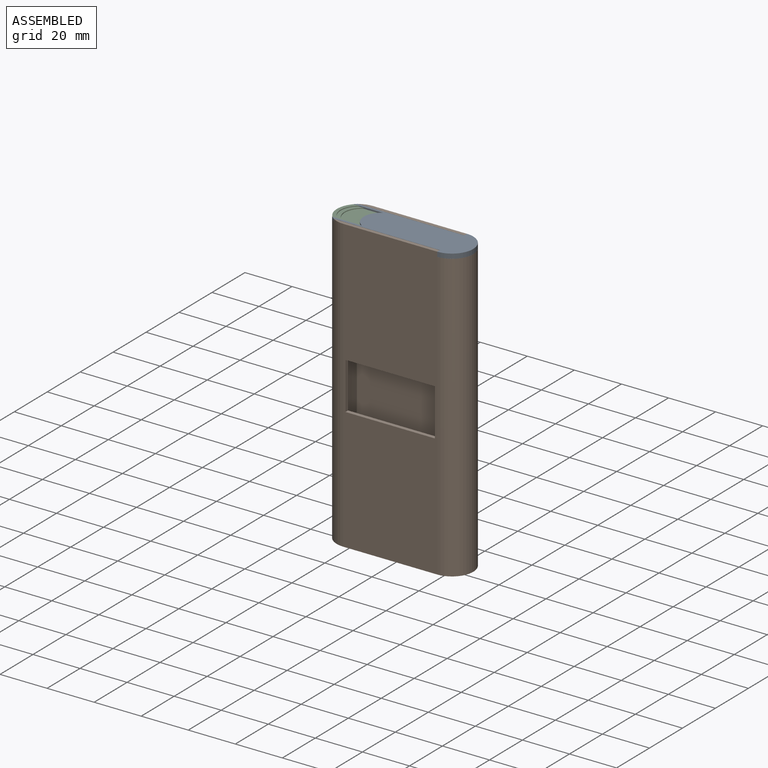
[diagram: assembled view]
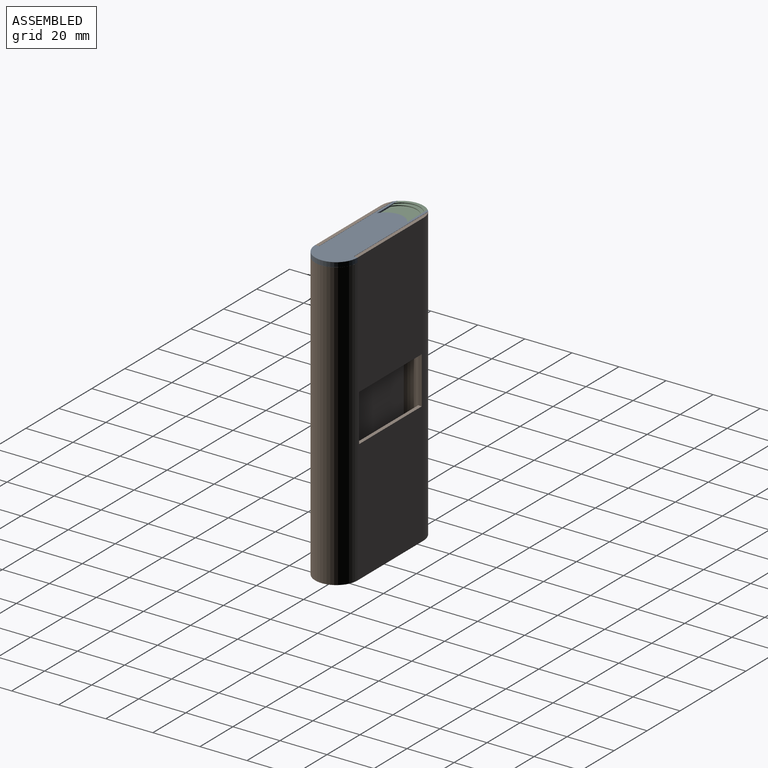
[diagram: assembled view, second angle]
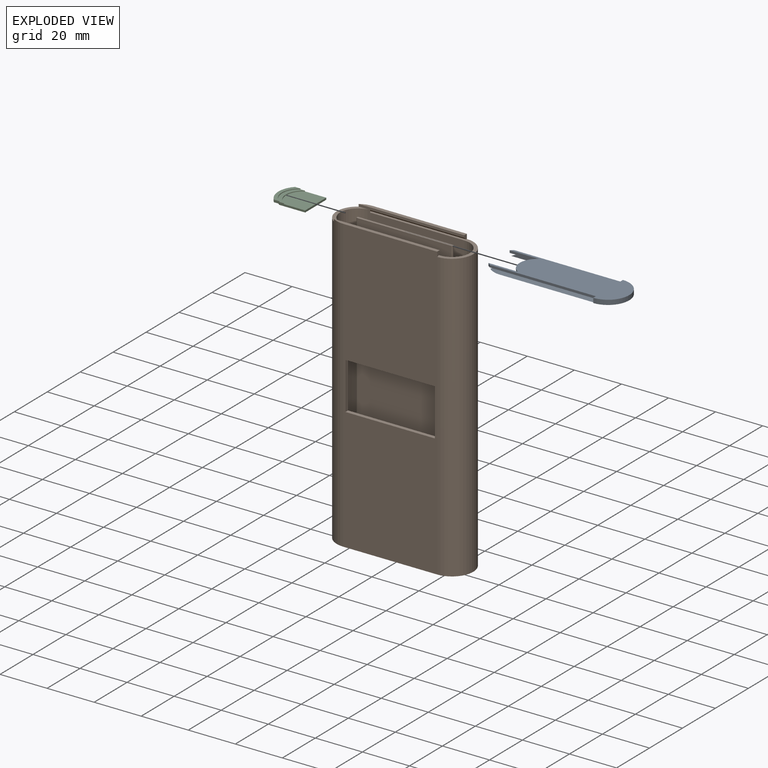
[diagram: exploded view]
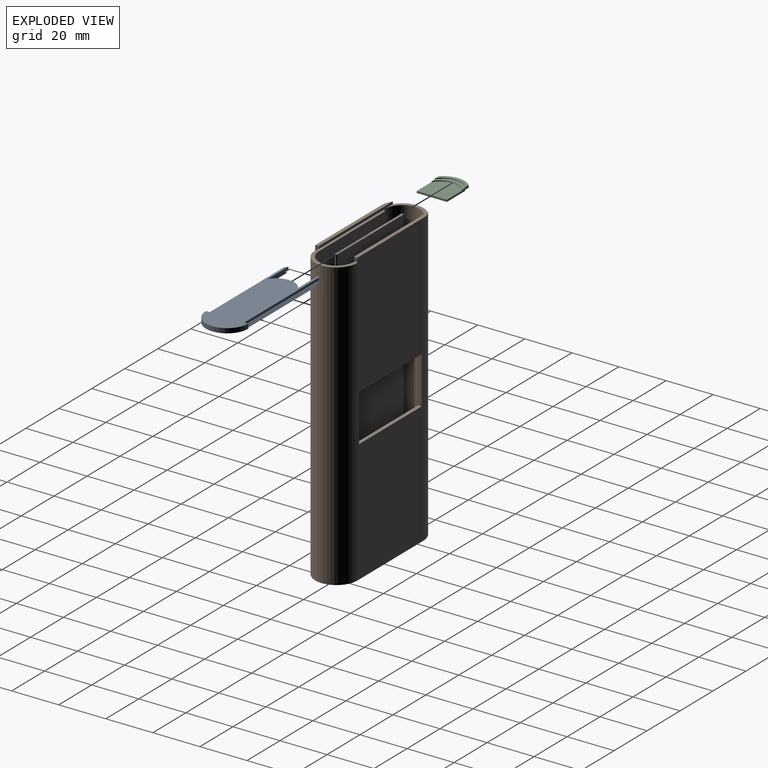
[diagram: exploded view, second angle]
ASSEMBLY  parts=3 mates=2
PART A: 28 faces, bbox 55.3x18x2 mm
  f0: cylinder r=9mm len=1.21mm, axis (0,0,-1), area 1.6mm2, adj f9,f10,f15,f24
  f1: cylinder r=9mm len=1.21mm, axis (0,0,-1), area 1.6mm2, adj f7,f14,f15,f27
  f2: plane 54.59x18mm, normal (0,0,-1), area 713mm2, adj f5,f6,f7,f9,f11,f12,f13,f18
  f3: plane 13.04x5.55mm, normal (0,0,1), area 65.9mm2, adj f5,f9,f16,f18
  f4: plane 13.04x5.55mm, normal (0,0,1), area 65.9mm2, adj f6,f7,f16,f20
  f5: cylinder r=7.5mm len=5.55mm, axis (0,0,-1), area 3.4mm2, adj f2,f3,f9,f18
  f6: cylinder r=7.5mm len=5.55mm, axis (0,0,-1), area 3.4mm2, adj f2,f4,f7,f20
  f7: plane 21.92x2mm, normal (0,-1,0), area 31.8mm2, adj f1,f2,f4,f6,f8,f15,f16,f17
  f8: cylinder r=7.5mm len=12.8mm, axis (0,0,-1), area 9.2mm2, adj f7,f9,f15,f17
  f9: plane 21.92x2mm, normal (0,1,0), area 31.8mm2, adj f0,f2,f3,f5,f8,f15,f16,f17
  f10: plane 45.12x1mm, normal (0,-1,0), area 45.1mm2, adj f0,f11,f15,f22,f24
  f11: plane 2x1.6mm, normal (-1,0,0), area 2.6mm2, adj f2,f10,f12,f15,f22
  f12: cylinder r=9mm len=18mm, axis (0,0,-1), area 56.5mm2, adj f2,f11,f13,f15
  f13: plane 2x1.6mm, normal (-1,0,0), area 2.7mm2, adj f2,f12,f14,f15,f23
  f14: plane 45.12x1mm, normal (0,1,0), area 45.1mm2, adj f1,f13,f15,f23,f27
  f15: plane 55.33x18mm, normal (0,0,1), area 685.3mm2, adj f0,f1,f7,f8,f9,f10,f11,f12
  f16: plane 12.8x0.9mm, normal (-1,0,0), area 11.5mm2, adj f3,f4,f7,f9,f17,f21
  f17: plane 13.09x12.8mm, normal (0,0,-1), area 154.1mm2, adj f7,f8,f9,f16
  f18: plane 37.45x0.5mm, normal (0,1,0), area 18.7mm2, adj f2,f3,f5,f19,f21
  f19: cylinder r=0.85mm len=1.7mm, axis (0,0,1), area 1.3mm2, adj f2,f18,f20,f21
  f20: plane 37.45x0.5mm, normal (0,-1,0), area 18.7mm2, adj f2,f4,f6,f19,f21
  f21: plane 25.26x1.7mm, normal (0,0,-1), area 42.6mm2, adj f16,f18,f19,f20
  f22: plane 40x1.1mm, normal (0,-0.67,0.74), area 59.5mm2, adj f2,f10,f11,f25
  f23: plane 40x1.1mm, normal (0,0.67,0.74), area 59.5mm2, adj f2,f13,f14,f26
  f24: plane 6.33x1mm, normal (0,0,-1), area 3.2mm2, adj f0,f9,f10,f25
  f25: cone r=7.4mm half-angle=47.7deg, axis (0,0,-1), area 7.5mm2, adj f2,f9,f22,f24
  f26: cone r=7.4mm half-angle=47.7deg, axis (0,0,-1), area 7.5mm2, adj f2,f7,f23,f27
  f27: plane 6.33x1mm, normal (0,0,-1), area 3.2mm2, adj f1,f7,f14,f26
PART B: 37 faces, bbox 58x18x124 mm
  f0: plane 124x40mm, normal (0,-1,0), area 4200mm2, adj f6,f10,f11,f12,f13,f33,f34,f35
  f1: plane 124x40mm, normal (0,1,0), area 4200mm2, adj f10,f11,f12,f14,f15,f29,f30,f31
  f2: plane 53.21x18mm, normal (0,0,1), area 133.1mm2, adj f3,f5,f6,f8,f10,f14,f16,f24
  f3: cone r=7.5mm half-angle=47.7deg, axis (0,0,-1), area 4.2mm2, adj f2,f24,f27
  f4: plane 44.98x1mm, normal (0,1,0), area 45mm2, adj f6,f11,f13,f18,f25
  f5: plane 121x40mm, normal (0,-1,0), area 4080mm2, adj f2,f7,f16,f17,f29,f30,f31,f32
  f6: plane 2x1.5mm, normal (1,0,0), area 2.5mm2, adj f0,f2,f4,f13,f25
  f7: plane 55x15mm, normal (0,0,1), area 735.9mm2, adj f5,f8,f16,f17,f19,f20,f21,f22
  f8: plane 121x40mm, normal (0,1,0), area 4080mm2, adj f2,f7,f16,f17,f33,f34,f35,f36
  f9: plane 44.98x1mm, normal (0,-1,0), area 45mm2, adj f11,f14,f15,f18,f24
  f10: cylinder r=9mm len=122mm, axis (0,0,1), area 3449.5mm2, adj f0,f1,f2,f12
  f11: cylinder r=9mm len=124mm, axis (0,0,1), area 3488.3mm2, adj f0,f1,f4,f9,f12,f13,f15,f18
  f12: plane 58x18mm, normal (0,0,-1), area 974.5mm2, adj f0,f1,f10,f11
  f13: plane 44.98x1.5mm, normal (0,0,1), area 65.1mm2, adj f0,f4,f6,f11
  f14: plane 2x1.5mm, normal (1,0,0), area 2.5mm2, adj f1,f2,f9,f15,f24
  f15: plane 44.98x1.5mm, normal (0,0,1), area 65.1mm2, adj f1,f9,f11,f14
  f16: cylinder r=7.5mm len=121mm, axis (0,0,-1), area 2851mm2, adj f2,f5,f7,f8
  f17: cylinder r=7.5mm len=122mm, axis (0,0,-1), area 2874.6mm2, adj f5,f7,f8,f18,f27,f28
  f18: plane 15x9mm, normal (0,0,1), area 28.7mm2, adj f4,f9,f11,f17
  f19: plane 122x40mm, normal (0,1,0), area 4880mm2, adj f7,f20,f22,f23
  f20: cylinder r=0.5mm len=122mm, axis (0,0,-1), area 191.6mm2, adj f7,f19,f21,f23
  f21: plane 122x40mm, normal (0,-1,0), area 4880mm2, adj f7,f20,f22,f23
  f22: cylinder r=0.5mm len=122mm, axis (0,0,-1), area 191.6mm2, adj f7,f19,f21,f23
  f23: plane 41x1mm, normal (0,0,1), area 40.8mm2, adj f19,f20,f21,f22
  f24: plane 40x1.1mm, normal (0,-0.67,-0.74), area 59.5mm2, adj f2,f3,f9,f14
  f25: plane 40x1.1mm, normal (0,0.67,-0.74), area 59.5mm2, adj f2,f4,f6,f26
  f26: cone r=7.5mm half-angle=47.7deg, axis (0,0,-1), area 4.2mm2, adj f2,f25,f28
  f27: plane 4.21x1mm, normal (0,1,0), area 2.8mm2, adj f2,f3,f17
  f28: plane 4.21x1mm, normal (0,-1,0), area 2.8mm2, adj f2,f17,f26
  f29: plane 20x1.5mm, normal (-1,0,0), area 30mm2, adj f1,f5,f31,f32
  f30: plane 20x1.5mm, normal (1,0,0), area 30mm2, adj f1,f5,f31,f32
  f31: plane 38x1.5mm, normal (0,0,-1), area 57mm2, adj f1,f5,f29,f30
  f32: plane 38x1.5mm, normal (0,0,1), area 57mm2, adj f1,f5,f29,f30
  f33: plane 20x1.5mm, normal (1,0,0), area 30mm2, adj f0,f8,f35,f36
  f34: plane 20x1.5mm, normal (-1,0,0), area 30mm2, adj f0,f8,f35,f36
  f35: plane 38x1.5mm, normal (0,0,-1), area 57mm2, adj f0,f8,f33,f34
  f36: plane 38x1.5mm, normal (0,0,1), area 57mm2, adj f0,f8,f33,f34
PART C: 12 faces, bbox 15.8x12.8x1.4 mm
  f0: cylinder r=7.75mm len=12.8mm, axis (0,0,-1), area 4.5mm2, adj f1,f3,f4,f7
  f1: plane 13.27x1.4mm, normal (0,1,0), area 11.7mm2, adj f0,f2,f4,f5,f6,f7,f8,f9
  f2: cylinder r=9.25mm len=12.8mm, axis (0,0,-1), area 14.1mm2, adj f1,f3,f4,f5
  f3: plane 13.27x1.4mm, normal (0,-1,0), area 11.7mm2, adj f0,f2,f4,f5,f6,f7,f8,f9
  f4: plane 12.8x4.88mm, normal (0,0,1), area 21.8mm2, adj f0,f1,f2,f3
  f5: plane 12.8x4.88mm, normal (0,0,-1), area 21.8mm2, adj f1,f2,f3,f8
  f6: cylinder r=7.5mm len=12.8mm, axis (0,0,-1), area 4.6mm2, adj f1,f3,f7,f9
  f7: plane 12.8x5.34mm, normal (0,0,1), area 23mm2, adj f0,f1,f3,f6
  f8: cylinder r=7.75mm len=12.8mm, axis (0,0,1), area 6mm2, adj f1,f3,f5,f11
  f9: plane 12.8x12.59mm, normal (0,0,1), area 147.7mm2, adj f1,f3,f6,f10
  f10: plane 12.8x0.8mm, normal (1,0,0), area 10.2mm2, adj f1,f3,f9,f11
  f11: plane 14.34x12.8mm, normal (0,0,-1), area 170.7mm2, adj f1,f3,f8,f10
PLACE A t=(-19.94,0.01,60.98)mm
PLACE B t=(-19.94,0.02,-61.03)mm fixed
PLACE C t=(-19.57,0.01,60.93)mm
MATE slider B.f14 <-> A.f13  axis (1,0,0) through (20.06,8.35,61.12)mm
MATE slider A.f16 <-> C.f10  axis (-1,0,0) through (-4.35,0.01,60.93)mm
